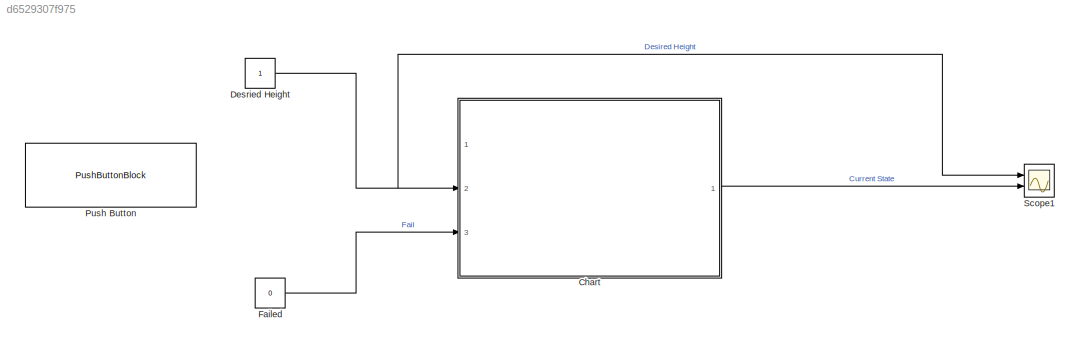
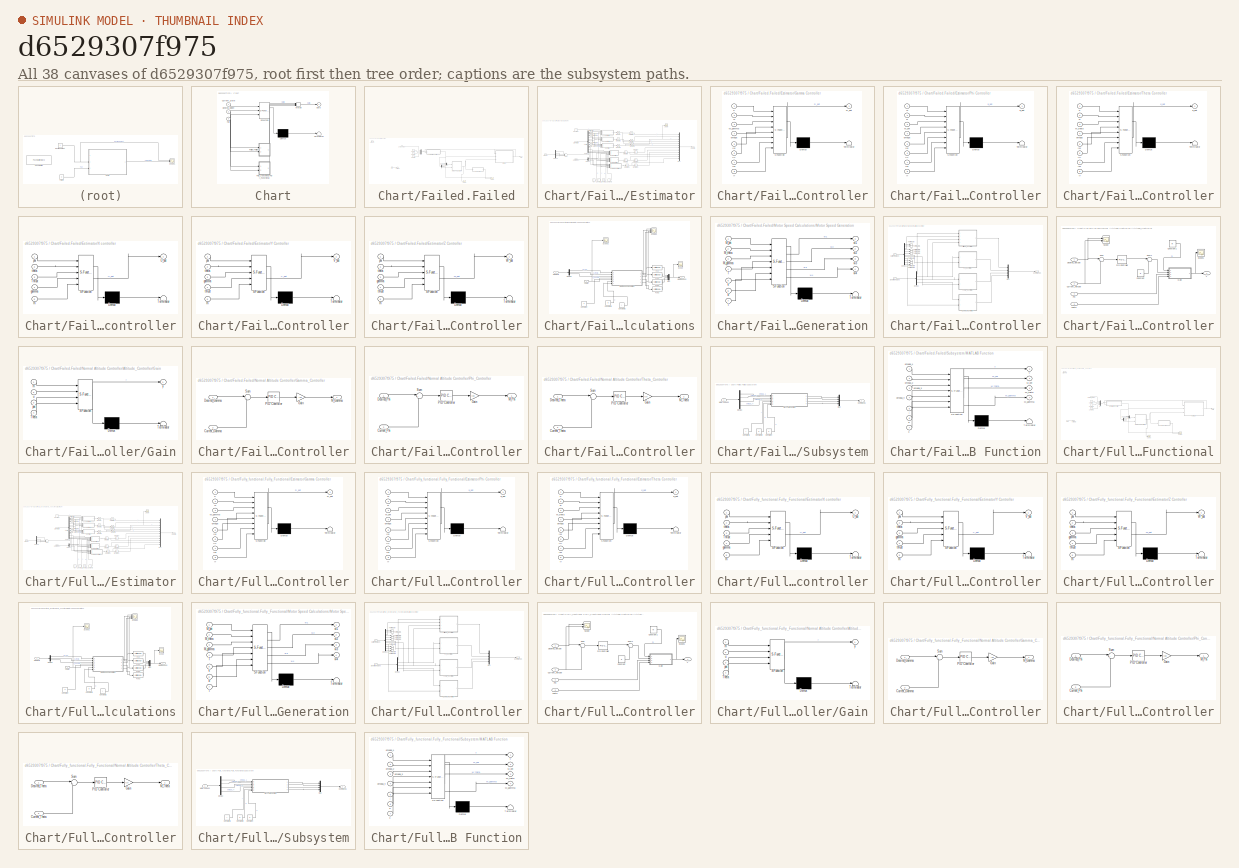
[diagram: thumbnail index - all 38 canvases of the model, root first then tree order]
MODEL slx_d6529307f975
KIND model
CONFIG AbsTol = auto
CONFIG EnableMultiTasking = off
CONFIG FixedStep = auto
CONFIG MaxStep = auto
CONFIG MinStep = auto
CONFIG RelTol = 1e-3
CONFIG SampleTimeConstraint = Unconstrained
CONFIG Solver = VariableStepAuto
CONFIG SolverName = VariableStepAuto
CONFIG StartTime = 0.0
CONFIG StopTime = inf
BLOCK [SubSystem] Chart
  ErrorFcn = Stateflow.Translate.translate
  PermitHierarchicalResolution = ExplicitOnly
  Ports = [3, 1]
  RequestExecContextInheritance = off
  SFBlockType = Chart
  TreatAsAtomicUnit = on
BLOCK [Demux] Chart/ Demux 
  Outputs = 1
  Ports = [1, 1]
BLOCK [Merge] Chart/ Merge 
  Inputs = 3
  Ports = [3, 1]
BLOCK [S-Function] Chart/ SFunction 
  EnableBusSupport = on
  FunctionName = sf_sfun
  PortCounts = [3 2]
  Ports = [3, 2]
  SFcnIsStateOwnerBlock = off
  SFunctionDeploymentMode = off
  Tag = Stateflow S-Function 1
BLOCK [Terminator] Chart/ Terminator 
BLOCK [Inport] Chart/Current_State
BLOCK [Inport] Chart/Desired_Height
  Port = 2
BLOCK [Inport] Chart/Fail
  Port = 3
BLOCK [SubSystem] Chart/Failed.Failed
  Ports = [2, 1, 0, 0, 0, 0, 0, 1]
  PreDeleteFcn = Stateflow.SLINSF.SimulinkMan.removePreDeleteFcn
  RequestExecContextInheritance = off
  UndoDeleteFcn = Stateflow.SLINSF.SimulinkMan.restorePreDeleteFcn
BLOCK [ActionPort] Chart/Failed.Failed/Action Port
  CopyFcn = Stateflow.SLINSF.SimulinkMan.removeBlockPreDeleteFcn
  PreDeleteFcn = Stateflow.SLINSF.SimulinkMan.unsafePredeleteFcn
BLOCK [Constant] Chart/Failed.Failed/Constant
  Value = 0
BLOCK [Constant] Chart/Failed.Failed/Constant1
  Value = 0
BLOCK [Constant] Chart/Failed.Failed/Constant2
  Value = 0
BLOCK [Demux] Chart/Failed.Failed/Demux
  Ports = [1, 4]
BLOCK [Inport] Chart/Failed.Failed/Desired_Height
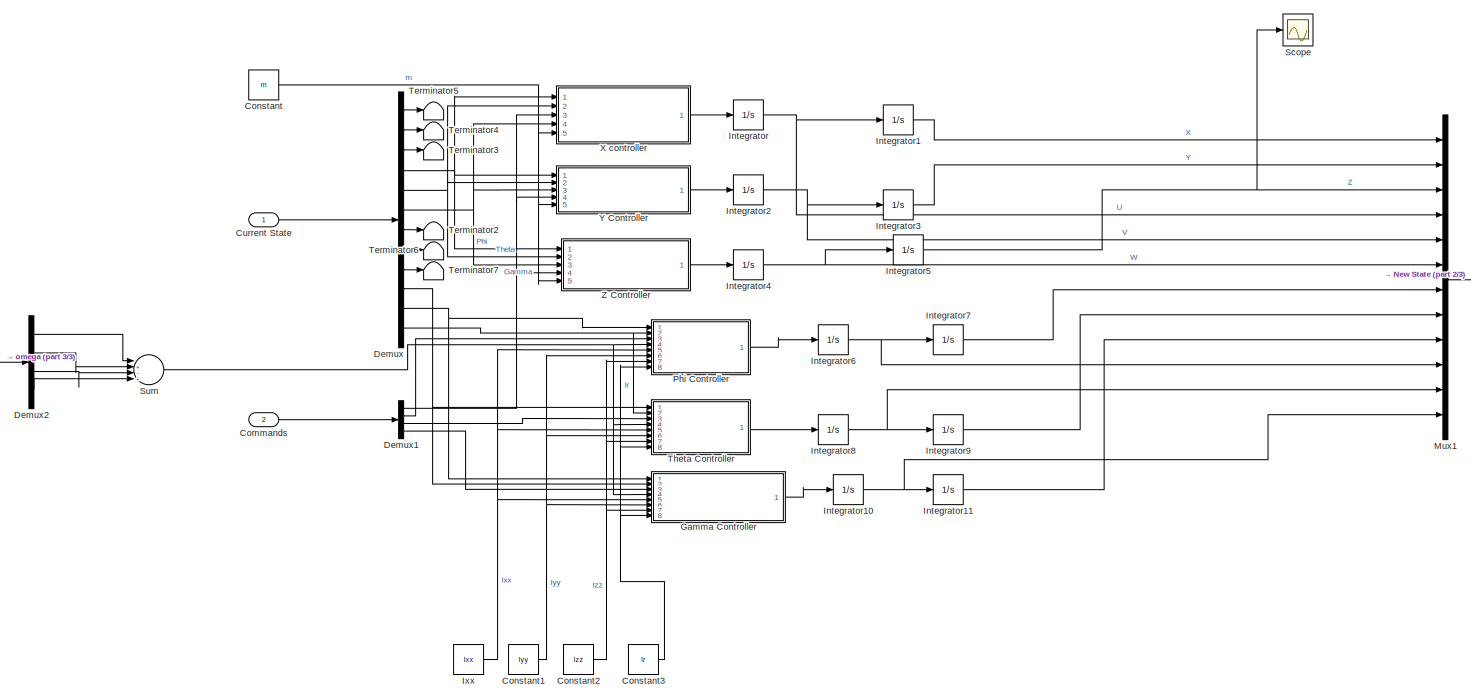
[diagram: Chart/Failed.Failed/Estimator - part 1/3, most of the canvas]
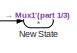
[diagram: Chart/Failed.Failed/Estimator - part 2/3, middle right region]
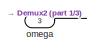
[diagram: Chart/Failed.Failed/Estimator - part 3/3, middle left region]
BLOCK [SubSystem] Chart/Failed.Failed/Estimator
  Ports = [3, 1]
  RequestExecContextInheritance = off
BLOCK [Inport] Chart/Failed.Failed/Estimator/Commands
  Port = 2
BLOCK [Constant] Chart/Failed.Failed/Estimator/Constant
  Value = m
BLOCK [Constant] Chart/Failed.Failed/Estimator/Constant1
  Value = Iyy
BLOCK [Constant] Chart/Failed.Failed/Estimator/Constant2
  Value = Izz
BLOCK [Constant] Chart/Failed.Failed/Estimator/Constant3
  Value = Ir
BLOCK [Inport] Chart/Failed.Failed/Estimator/Current State
BLOCK [Demux] Chart/Failed.Failed/Estimator/Demux
  Outputs = 12
  Ports = [1, 12]
BLOCK [Demux] Chart/Failed.Failed/Estimator/Demux1
  Ports = [1, 4]
BLOCK [Demux] Chart/Failed.Failed/Estimator/Demux2
  Ports = [1, 4]
BLOCK [SubSystem] Chart/Failed.Failed/Estimator/Gamma Controller
  ErrorFcn = Stateflow.Translate.translate
  PermitHierarchicalResolution = ExplicitOnly
  Ports = [8, 1]
  RequestExecContextInheritance = off
  SFBlockType = MATLAB Function
  TreatAsAtomicUnit = on
BLOCK [Demux] Chart/Failed.Failed/Estimator/Gamma Controller/ Demux 
  Outputs = 1
  Ports = [1, 1]
BLOCK [S-Function] Chart/Failed.Failed/Estimator/Gamma Controller/ SFunction 
  EnableBusSupport = on
  FunctionName = sf_sfun
  PortCounts = [8 2]
  Ports = [8, 2]
  SFcnIsStateOwnerBlock = off
  SFunctionDeploymentMode = off
  Tag = Stateflow S-Function 3
BLOCK [Terminator] Chart/Failed.Failed/Estimator/Gamma Controller/ Terminator 
BLOCK [Inport] Chart/Failed.Failed/Estimator/Gamma Controller/Ir
  Port = 8
BLOCK [Inport] Chart/Failed.Failed/Estimator/Gamma Controller/Ixx
  Port = 5
BLOCK [Inport] Chart/Failed.Failed/Estimator/Gamma Controller/Iyy
  Port = 6
BLOCK [Inport] Chart/Failed.Failed/Estimator/Gamma Controller/Izz
  Port = 7
BLOCK [Inport] Chart/Failed.Failed/Estimator/Gamma Controller/M_gamma
  Port = 3
BLOCK [Inport] Chart/Failed.Failed/Estimator/Gamma Controller/P
BLOCK [Inport] Chart/Failed.Failed/Estimator/Gamma Controller/Q
  Port = 2
BLOCK [Outport] Chart/Failed.Failed/Estimator/Gamma Controller/R_dot
BLOCK [Inport] Chart/Failed.Failed/Estimator/Gamma Controller/omega
  Port = 4
BLOCK [Integrator] Chart/Failed.Failed/Estimator/Integrator
  Ports = [1, 1]
BLOCK [Integrator] Chart/Failed.Failed/Estimator/Integrator1
  Ports = [1, 1]
BLOCK [Integrator] Chart/Failed.Failed/Estimator/Integrator10
  Ports = [1, 1]
BLOCK [Integrator] Chart/Failed.Failed/Estimator/Integrator11
  Ports = [1, 1]
BLOCK [Integrator] Chart/Failed.Failed/Estimator/Integrator2
  Ports = [1, 1]
BLOCK [Integrator] Chart/Failed.Failed/Estimator/Integrator3
  Ports = [1, 1]
BLOCK [Integrator] Chart/Failed.Failed/Estimator/Integrator4
  Ports = [1, 1]
BLOCK [Integrator] Chart/Failed.Failed/Estimator/Integrator5
  Ports = [1, 1]
BLOCK [Integrator] Chart/Failed.Failed/Estimator/Integrator6
  Ports = [1, 1]
BLOCK [Integrator] Chart/Failed.Failed/Estimator/Integrator7
  Ports = [1, 1]
BLOCK [Integrator] Chart/Failed.Failed/Estimator/Integrator8
  Ports = [1, 1]
BLOCK [Integrator] Chart/Failed.Failed/Estimator/Integrator9
  Ports = [1, 1]
BLOCK [Constant] Chart/Failed.Failed/Estimator/Ixx
  Value = Ixx
BLOCK [Mux] Chart/Failed.Failed/Estimator/Mux1
  DisplayOption = bar
  Inputs = 12
  Ports = [12, 1]
BLOCK [Outport] Chart/Failed.Failed/Estimator/New State
BLOCK [SubSystem] Chart/Failed.Failed/Estimator/Phi Controller
  ErrorFcn = Stateflow.Translate.translate
  PermitHierarchicalResolution = ExplicitOnly
  Ports = [8, 1]
  RequestExecContextInheritance = off
  SFBlockType = MATLAB Function
  TreatAsAtomicUnit = on
BLOCK [Demux] Chart/Failed.Failed/Estimator/Phi Controller/ Demux 
  Outputs = 1
  Ports = [1, 1]
BLOCK [S-Function] Chart/Failed.Failed/Estimator/Phi Controller/ SFunction 
  EnableBusSupport = on
  FunctionName = sf_sfun
  PortCounts = [8 2]
  Ports = [8, 2]
  SFcnIsStateOwnerBlock = off
  SFunctionDeploymentMode = off
  Tag = Stateflow S-Function 12
BLOCK [Terminator] Chart/Failed.Failed/Estimator/Phi Controller/ Terminator 
BLOCK [Inport] Chart/Failed.Failed/Estimator/Phi Controller/Ir
  Port = 8
BLOCK [Inport] Chart/Failed.Failed/Estimator/Phi Controller/Ixx
  Port = 5
BLOCK [Inport] Chart/Failed.Failed/Estimator/Phi Controller/Iyy
  Port = 6
BLOCK [Inport] Chart/Failed.Failed/Estimator/Phi Controller/Izz
  Port = 7
BLOCK [Inport] Chart/Failed.Failed/Estimator/Phi Controller/M_phi
  Port = 3
BLOCK [Inport] Chart/Failed.Failed/Estimator/Phi Controller/Q
BLOCK [Inport] Chart/Failed.Failed/Estimator/Phi Controller/R
  Port = 2
BLOCK [Inport] Chart/Failed.Failed/Estimator/Phi Controller/omega
  Port = 4
BLOCK [Outport] Chart/Failed.Failed/Estimator/Phi Controller/p_dot
BLOCK [Scope] Chart/Failed.Failed/Estimator/Scope
  Floating = off
  NumInputPorts = 1
  Ports = [1]
  ScopeSpecificationString = Simulink.scopes.TimeScopeBlockCfg('CurrentConfiguration', extmgr.ConfigurationSet(extmgr.Configuration('Core','General UI',true),extmgr.Configuration('Core','Source UI',true),extmgr.Configuration('Sources','WiredSimulink',true,'DataLoggingVariableName','ScopeData4'),extmgr.Configuration('Visuals','Time Domain',true,'SerializedDisplays',{struct('MinYLimReal','-100.13912','MaxYLimReal','88.7363','YL...<+1399ch>
BLOCK [Sum] Chart/Failed.Failed/Estimator/Sum
  Inputs = |+-+-
  Ports = [4, 1]
BLOCK [Terminator] Chart/Failed.Failed/Estimator/Terminator2
BLOCK [Terminator] Chart/Failed.Failed/Estimator/Terminator3
BLOCK [Terminator] Chart/Failed.Failed/Estimator/Terminator4
BLOCK [Terminator] Chart/Failed.Failed/Estimator/Terminator5
BLOCK [Terminator] Chart/Failed.Failed/Estimator/Terminator6
BLOCK [Terminator] Chart/Failed.Failed/Estimator/Terminator7
BLOCK [SubSystem] Chart/Failed.Failed/Estimator/Theta Controller
  ErrorFcn = Stateflow.Translate.translate
  PermitHierarchicalResolution = ExplicitOnly
  Ports = [8, 1]
  RequestExecContextInheritance = off
  SFBlockType = MATLAB Function
  TreatAsAtomicUnit = on
BLOCK [Demux] Chart/Failed.Failed/Estimator/Theta Controller/ Demux 
  Outputs = 1
  Ports = [1, 1]
BLOCK [S-Function] Chart/Failed.Failed/Estimator/Theta Controller/ SFunction 
  EnableBusSupport = on
  FunctionName = sf_sfun
  PortCounts = [8 2]
  Ports = [8, 2]
  SFcnIsStateOwnerBlock = off
  SFunctionDeploymentMode = off
  Tag = Stateflow S-Function 13
BLOCK [Terminator] Chart/Failed.Failed/Estimator/Theta Controller/ Terminator 
BLOCK [Inport] Chart/Failed.Failed/Estimator/Theta Controller/Ir
  Port = 8
BLOCK [Inport] Chart/Failed.Failed/Estimator/Theta Controller/Ixx
  Port = 5
BLOCK [Inport] Chart/Failed.Failed/Estimator/Theta Controller/Iyy
  Port = 6
BLOCK [Inport] Chart/Failed.Failed/Estimator/Theta Controller/Izz
  Port = 7
BLOCK [Inport] Chart/Failed.Failed/Estimator/Theta Controller/M_theta
  Port = 3
BLOCK [Inport] Chart/Failed.Failed/Estimator/Theta Controller/P
BLOCK [Inport] Chart/Failed.Failed/Estimator/Theta Controller/R
  Port = 2
BLOCK [Inport] Chart/Failed.Failed/Estimator/Theta Controller/omega
  Port = 4
BLOCK [Outport] Chart/Failed.Failed/Estimator/Theta Controller/q_dot
BLOCK [SubSystem] Chart/Failed.Failed/Estimator/X controller
  ErrorFcn = Stateflow.Translate.translate
  PermitHierarchicalResolution = ExplicitOnly
  Ports = [5, 1]
  RequestExecContextInheritance = off
  SFBlockType = MATLAB Function
  TreatAsAtomicUnit = on
BLOCK [Demux] Chart/Failed.Failed/Estimator/X controller/ Demux 
  Outputs = 1
  Ports = [1, 1]
BLOCK [S-Function] Chart/Failed.Failed/Estimator/X controller/ SFunction 
  EnableBusSupport = on
  FunctionName = sf_sfun
  PortCounts = [5 2]
  Ports = [5, 2]
  SFcnIsStateOwnerBlock = off
  SFunctionDeploymentMode = off
  Tag = Stateflow S-Function 14
BLOCK [Terminator] Chart/Failed.Failed/Estimator/X controller/ Terminator 
BLOCK [Inport] Chart/Failed.Failed/Estimator/X controller/Thrust
  Port = 3
BLOCK [Outport] Chart/Failed.Failed/Estimator/X controller/U_dot
BLOCK [Inport] Chart/Failed.Failed/Estimator/X controller/gamma
  Port = 4
BLOCK [Inport] Chart/Failed.Failed/Estimator/X controller/m
  Port = 5
BLOCK [Inport] Chart/Failed.Failed/Estimator/X controller/phi
BLOCK [Inport] Chart/Failed.Failed/Estimator/X controller/theta
  Port = 2
BLOCK [SubSystem] Chart/Failed.Failed/Estimator/Y Controller
  ErrorFcn = Stateflow.Translate.translate
  PermitHierarchicalResolution = ExplicitOnly
  Ports = [5, 1]
  RequestExecContextInheritance = off
  SFBlockType = MATLAB Function
  TreatAsAtomicUnit = on
BLOCK [Demux] Chart/Failed.Failed/Estimator/Y Controller/ Demux 
  Outputs = 1
  Ports = [1, 1]
BLOCK [S-Function] Chart/Failed.Failed/Estimator/Y Controller/ SFunction 
  EnableBusSupport = on
  FunctionName = sf_sfun
  PortCounts = [5 2]
  Ports = [5, 2]
  SFcnIsStateOwnerBlock = off
  SFunctionDeploymentMode = off
  Tag = Stateflow S-Function 15
BLOCK [Terminator] Chart/Failed.Failed/Estimator/Y Controller/ Terminator 
BLOCK [Outport] Chart/Failed.Failed/Estimator/Y Controller/V_dot
BLOCK [Inport] Chart/Failed.Failed/Estimator/Y Controller/gamma
  Port = 3
BLOCK [Inport] Chart/Failed.Failed/Estimator/Y Controller/m
  Port = 5
BLOCK [Inport] Chart/Failed.Failed/Estimator/Y Controller/phi
BLOCK [Inport] Chart/Failed.Failed/Estimator/Y Controller/theta
  Port = 2
BLOCK [Inport] Chart/Failed.Failed/Estimator/Y Controller/thrust
  Port = 4
BLOCK [SubSystem] Chart/Failed.Failed/Estimator/Z Controller
  ErrorFcn = Stateflow.Translate.translate
  PermitHierarchicalResolution = ExplicitOnly
  Ports = [5, 1]
  RequestExecContextInheritance = off
  SFBlockType = MATLAB Function
  TreatAsAtomicUnit = on
BLOCK [Demux] Chart/Failed.Failed/Estimator/Z Controller/ Demux 
  Outputs = 1
  Ports = [1, 1]
BLOCK [S-Function] Chart/Failed.Failed/Estimator/Z Controller/ SFunction 
  EnableBusSupport = on
  FunctionName = sf_sfun
  PortCounts = [5 2]
  Ports = [5, 2]
  SFcnIsStateOwnerBlock = off
  SFunctionDeploymentMode = off
  Tag = Stateflow S-Function 16
BLOCK [Terminator] Chart/Failed.Failed/Estimator/Z Controller/ Terminator 
BLOCK [Outport] Chart/Failed.Failed/Estimator/Z Controller/W_dot
BLOCK [Inport] Chart/Failed.Failed/Estimator/Z Controller/gamma
  Port = 3
BLOCK [Inport] Chart/Failed.Failed/Estimator/Z Controller/m
  Port = 5
BLOCK [Inport] Chart/Failed.Failed/Estimator/Z Controller/phi
BLOCK [Inport] Chart/Failed.Failed/Estimator/Z Controller/theta
  Port = 2
BLOCK [Inport] Chart/Failed.Failed/Estimator/Z Controller/thrust
  Port = 4
BLOCK [Inport] Chart/Failed.Failed/Estimator/omega
  Port = 3
BLOCK [Inport] Chart/Failed.Failed/Fail
  Port = 2
BLOCK [SubSystem] Chart/Failed.Failed/Motor Speed Calculations
  Ports = [2, 1]
  RequestExecContextInheritance = off
BLOCK [Constant] Chart/Failed.Failed/Motor Speed Calculations/Constant
  Value = k
BLOCK [Constant] Chart/Failed.Failed/Motor Speed Calculations/Constant1
  Value = b
BLOCK [Constant] Chart/Failed.Failed/Motor Speed Calculations/Constant2
  Value = l
BLOCK [Demux] Chart/Failed.Failed/Motor Speed Calculations/Demux
  Outputs = 3
  Ports = [1, 3]
BLOCK [Fcn] Chart/Failed.Failed/Motor Speed Calculations/Fcn
  Expr = sqrt(abs(u))
BLOCK [Fcn] Chart/Failed.Failed/Motor Speed Calculations/Fcn1
  Expr = sqrt(abs(u))
BLOCK [Fcn] Chart/Failed.Failed/Motor Speed Calculations/Fcn2
  Expr = sqrt(abs(u))
BLOCK [Fcn] Chart/Failed.Failed/Motor Speed Calculations/Fcn3
  Expr = sqrt(abs(u))
BLOCK [Inport] Chart/Failed.Failed/Motor Speed Calculations/Moments
BLOCK [SubSystem] Chart/Failed.Failed/Motor Speed Calculations/Motor Speed Generation
  ErrorFcn = Stateflow.Translate.translate
  PermitHierarchicalResolution = ExplicitOnly
  Ports = [7, 4]
  RequestExecContextInheritance = off
  SFBlockType = MATLAB Function
  TreatAsAtomicUnit = on
BLOCK [Demux] Chart/Failed.Failed/Motor Speed Calculations/Motor Speed Generation/ Demux 
  Outputs = 1
  Ports = [1, 1]
BLOCK [S-Function] Chart/Failed.Failed/Motor Speed Calculations/Motor Speed Generation/ SFunction 
  EnableBusSupport = on
  FunctionName = sf_sfun
  PortCounts = [7 5]
  Ports = [7, 5]
  SFcnIsStateOwnerBlock = off
  SFunctionDeploymentMode = off
  Tag = Stateflow S-Function 17
BLOCK [Terminator] Chart/Failed.Failed/Motor Speed Calculations/Motor Speed Generation/ Terminator 
BLOCK [Inport] Chart/Failed.Failed/Motor Speed Calculations/Motor Speed Generation/M_gamma
  Port = 3
BLOCK [Inport] Chart/Failed.Failed/Motor Speed Calculations/Motor Speed Generation/M_phi
BLOCK [Inport] Chart/Failed.Failed/Motor Speed Calculations/Motor Speed Generation/M_theta
  Port = 2
BLOCK [Inport] Chart/Failed.Failed/Motor Speed Calculations/Motor Speed Generation/T
  Port = 4
BLOCK [Inport] Chart/Failed.Failed/Motor Speed Calculations/Motor Speed Generation/b
  Port = 6
BLOCK [Inport] Chart/Failed.Failed/Motor Speed Calculations/Motor Speed Generation/k
  Port = 5
BLOCK [Inport] Chart/Failed.Failed/Motor Speed Calculations/Motor Speed Generation/l
  Port = 7
BLOCK [Outport] Chart/Failed.Failed/Motor Speed Calculations/Motor Speed Generation/w1
BLOCK [Outport] Chart/Failed.Failed/Motor Speed Calculations/Motor Speed Generation/w2
  Port = 2
BLOCK [Outport] Chart/Failed.Failed/Motor Speed Calculations/Motor Speed Generation/w3
  Port = 3
BLOCK [Outport] Chart/Failed.Failed/Motor Speed Calculations/Motor Speed Generation/w4
  Port = 4
BLOCK [Outport] Chart/Failed.Failed/Motor Speed Calculations/Motor Speeds
BLOCK [Mux] Chart/Failed.Failed/Motor Speed Calculations/Mux
  DisplayOption = bar
  Ports = [4, 1]
BLOCK [Scope] Chart/Failed.Failed/Motor Speed Calculations/Scope
  Floating = off
  NumInputPorts = 1
  Ports = [1]
  ScopeSpecificationString = Simulink.scopes.TimeScopeBlockCfg('CurrentConfiguration', extmgr.ConfigurationSet(extmgr.Configuration('Core','General UI',true),extmgr.Configuration('Core','Source UI',true),extmgr.Configuration('Sources','WiredSimulink',true,'DataLoggingVariableName','ScopeData5'),extmgr.Configuration('Visuals','Time Domain',true,'SerializedDisplays',{struct('MinYLimReal','-173.06483','MaxYLimReal','2272.1986','...<+1515ch>
BLOCK [Scope] Chart/Failed.Failed/Motor Speed Calculations/Scope1
  Floating = off
  NumInputPorts = 4
  Ports = [4]
  ScopeSpecificationString = Simulink.scopes.TimeScopeBlockCfg('CurrentConfiguration', extmgr.ConfigurationSet(extmgr.Configuration('Core','General UI',true),extmgr.Configuration('Core','Source UI',true),extmgr.Configuration('Sources','WiredSimulink',true,'DataLoggingVariableName','ScopeData6'),extmgr.Configuration('Visuals','Time Domain',true,'SerializedDisplays',{struct('MinYLimReal','-26176208.90607','MaxYLimReal','1263320...<+1669ch>
BLOCK [Scope] Chart/Failed.Failed/Motor Speed Calculations/Scope2
  Floating = off
  NumInputPorts = 1
  Ports = [1]
  ScopeSpecificationString = Simulink.scopes.TimeScopeBlockCfg('CurrentConfiguration', extmgr.ConfigurationSet(extmgr.Configuration('Core','General UI',true),extmgr.Configuration('Core','Source UI',true),extmgr.Configuration('Sources','WiredSimulink',true,'DataLoggingVariableName','ScopeData7'),extmgr.Configuration('Visuals','Time Domain',true,'SerializedDisplays',{struct('MinYLimReal','-58.40215','MaxYLimReal','35.53397','YL...<+1400ch>
BLOCK [Inport] Chart/Failed.Failed/Motor Speed Calculations/Thurst
  Port = 2
BLOCK [Mux] Chart/Failed.Failed/Mux
  DisplayOption = bar
  Ports = [4, 1]
BLOCK [Mux] Chart/Failed.Failed/Mux1
  DisplayOption = bar
  Inputs = 3
  Ports = [3, 1]
BLOCK [SubSystem] Chart/Failed.Failed/Normal Altitude Controller
  Ports = [2, 1]
  RequestExecContextInheritance = off
BLOCK [SubSystem] Chart/Failed.Failed/Normal Altitude Controller/Altitude_Controller
  Ports = [4, 1]
  RequestExecContextInheritance = off
BLOCK [Constant] Chart/Failed.Failed/Normal Altitude Controller/Altitude_Controller/Constant
  Value = g
BLOCK [Constant] Chart/Failed.Failed/Normal Altitude Controller/Altitude_Controller/Constant1
  Value = m
BLOCK [Inport] Chart/Failed.Failed/Normal Altitude Controller/Altitude_Controller/Current_Altitude
  Port = 2
BLOCK [Inport] Chart/Failed.Failed/Normal Altitude Controller/Altitude_Controller/Desired_Altitude
BLOCK [SubSystem] Chart/Failed.Failed/Normal Altitude Controller/Altitude_Controller/Gain
  ErrorFcn = Stateflow.Translate.translate
  PermitHierarchicalResolution = ExplicitOnly
  Ports = [4, 1]
  RequestExecContextInheritance = off
  SFBlockType = MATLAB Function
  TreatAsAtomicUnit = on
BLOCK [Demux] Chart/Failed.Failed/Normal Altitude Controller/Altitude_Controller/Gain/ Demux 
  Outputs = 1
  Ports = [1, 1]
BLOCK [S-Function] Chart/Failed.Failed/Normal Altitude Controller/Altitude_Controller/Gain/ SFunction 
  EnableBusSupport = on
  FunctionName = sf_sfun
  PortCounts = [4 2]
  Ports = [4, 2]
  SFcnIsStateOwnerBlock = off
  SFunctionDeploymentMode = off
  Tag = Stateflow S-Function 18
BLOCK [Terminator] Chart/Failed.Failed/Normal Altitude Controller/Altitude_Controller/Gain/ Terminator 
BLOCK [Inport] Chart/Failed.Failed/Normal Altitude Controller/Altitude_Controller/Gain/Theta
  Port = 4
BLOCK [Inport] Chart/Failed.Failed/Normal Altitude Controller/Altitude_Controller/Gain/m
BLOCK [Inport] Chart/Failed.Failed/Normal Altitude Controller/Altitude_Controller/Gain/phi
  Port = 3
BLOCK [Inport] Chart/Failed.Failed/Normal Altitude Controller/Altitude_Controller/Gain/u
  Port = 2
BLOCK [Outport] Chart/Failed.Failed/Normal Altitude Controller/Altitude_Controller/Gain/y
BLOCK [Reference] Chart/Failed.Failed/Normal Altitude Controller/Altitude_Controller/PID Controller  REF=simulink/Continuous/PID Controller
  Ports = [1, 1]
  SourceBlock = simulink/Continuous/PID Controller
  SourceProductBaseCode = SL
  SourceType = PID 1dof
BLOCK [Inport] Chart/Failed.Failed/Normal Altitude Controller/Altitude_Controller/Phi
  Port = 4
BLOCK [Scope] Chart/Failed.Failed/Normal Altitude Controller/Altitude_Controller/Scope
  Floating = off
  NumInputPorts = 2
  Ports = [2]
  ScopeSpecificationString = Simulink.scopes.TimeScopeBlockCfg('CurrentConfiguration', extmgr.ConfigurationSet(extmgr.Configuration('Core','General UI',true),extmgr.Configuration('Core','Source UI',true),extmgr.Configuration('Sources','WiredSimulink',true,'DataLoggingVariableName','ScopeData2'),extmgr.Configuration('Visuals','Time Domain',true,'SerializedDisplays',{struct('MinYLimReal','-0.71295','MaxYLimReal','6.41652','YLab...<+1537ch>
BLOCK [Scope] Chart/Failed.Failed/Normal Altitude Controller/Altitude_Controller/Scope1
  Floating = off
  NumInputPorts = 1
  Ports = [1]
  ScopeSpecificationString = Simulink.scopes.TimeScopeBlockCfg('CurrentConfiguration', extmgr.ConfigurationSet(extmgr.Configuration('Core','General UI',true),extmgr.Configuration('Core','Source UI',true),extmgr.Configuration('Sources','WiredSimulink',true,'DataLoggingVariableName','ScopeData3'),extmgr.Configuration('Visuals','Time Domain',true,'SerializedDisplays',{struct('MinYLimReal','-58.40215','MaxYLimReal','35.53397','YL...<+1369ch>
BLOCK [Sum] Chart/Failed.Failed/Normal Altitude Controller/Altitude_Controller/Sum
  Inputs = |+-
  Ports = [2, 1]
BLOCK [Sum] Chart/Failed.Failed/Normal Altitude Controller/Altitude_Controller/Sum1
  Inputs = |++
  Ports = [2, 1]
BLOCK [Outport] Chart/Failed.Failed/Normal Altitude Controller/Altitude_Controller/T
BLOCK [Inport] Chart/Failed.Failed/Normal Altitude Controller/Altitude_Controller/Theta
  Port = 3
BLOCK [Outport] Chart/Failed.Failed/Normal Altitude Controller/Commands
BLOCK [Inport] Chart/Failed.Failed/Normal Altitude Controller/Current Values
  Port = 2
BLOCK [Demux] Chart/Failed.Failed/Normal Altitude Controller/Demux
  Ports = [1, 4]
BLOCK [Demux] Chart/Failed.Failed/Normal Altitude Controller/Demux1
  Outputs = 12
  Ports = [1, 12]
BLOCK [Inport] Chart/Failed.Failed/Normal Altitude Controller/Desired Values 
BLOCK [SubSystem] Chart/Failed.Failed/Normal Altitude Controller/Gamma_Controller
  Ports = [2, 1]
  RequestExecContextInheritance = off
BLOCK [Inport] Chart/Failed.Failed/Normal Altitude Controller/Gamma_Controller/Current_Gamma
  Port = 2
BLOCK [Inport] Chart/Failed.Failed/Normal Altitude Controller/Gamma_Controller/Desired_Gamma
BLOCK [Gain] Chart/Failed.Failed/Normal Altitude Controller/Gamma_Controller/Gain
  Gain = Izz
BLOCK [Outport] Chart/Failed.Failed/Normal Altitude Controller/Gamma_Controller/M_Gamma
BLOCK [Reference] Chart/Failed.Failed/Normal Altitude Controller/Gamma_Controller/PID Controller  REF=simulink/Continuous/PID Controller
  Ports = [1, 1]
  SourceBlock = simulink/Continuous/PID Controller
  SourceProductBaseCode = SL
  SourceType = PID 1dof
BLOCK [Sum] Chart/Failed.Failed/Normal Altitude Controller/Gamma_Controller/Sum
  Inputs = |+-
  Ports = [2, 1]
BLOCK [Mux] Chart/Failed.Failed/Normal Altitude Controller/Mux
  DisplayOption = bar
  Ports = [4, 1]
BLOCK [SubSystem] Chart/Failed.Failed/Normal Altitude Controller/Phi_Controller
  Ports = [2, 1]
  RequestExecContextInheritance = off
BLOCK [Inport] Chart/Failed.Failed/Normal Altitude Controller/Phi_Controller/Current_Phi
  Port = 2
BLOCK [Inport] Chart/Failed.Failed/Normal Altitude Controller/Phi_Controller/Desired_Phi
BLOCK [Gain] Chart/Failed.Failed/Normal Altitude Controller/Phi_Controller/Gain
  Gain = Ixx
BLOCK [Outport] Chart/Failed.Failed/Normal Altitude Controller/Phi_Controller/M_Phi
BLOCK [Reference] Chart/Failed.Failed/Normal Altitude Controller/Phi_Controller/PID Controller  REF=simulink/Continuous/PID Controller
  Ports = [1, 1]
  SourceBlock = simulink/Continuous/PID Controller
  SourceProductBaseCode = SL
  SourceType = PID 1dof
BLOCK [Sum] Chart/Failed.Failed/Normal Altitude Controller/Phi_Controller/Sum
  Inputs = |+-
  Ports = [2, 1]
BLOCK [Terminator] Chart/Failed.Failed/Normal Altitude Controller/Terminator
BLOCK [Terminator] Chart/Failed.Failed/Normal Altitude Controller/Terminator1
BLOCK [Terminator] Chart/Failed.Failed/Normal Altitude Controller/Terminator2
BLOCK [Terminator] Chart/Failed.Failed/Normal Altitude Controller/Terminator3
BLOCK [Terminator] Chart/Failed.Failed/Normal Altitude Controller/Terminator4
BLOCK [Terminator] Chart/Failed.Failed/Normal Altitude Controller/Terminator5
BLOCK [Terminator] Chart/Failed.Failed/Normal Altitude Controller/Terminator6
BLOCK [Terminator] Chart/Failed.Failed/Normal Altitude Controller/Terminator7
BLOCK [SubSystem] Chart/Failed.Failed/Normal Altitude Controller/Theta_Controller
  Ports = [2, 1]
  RequestExecContextInheritance = off
BLOCK [Inport] Chart/Failed.Failed/Normal Altitude Controller/Theta_Controller/Current_Theta
  Port = 2
BLOCK [Inport] Chart/Failed.Failed/Normal Altitude Controller/Theta_Controller/Desired_Theta
BLOCK [Gain] Chart/Failed.Failed/Normal Altitude Controller/Theta_Controller/Gain
  Gain = Iyy
BLOCK [Outport] Chart/Failed.Failed/Normal Altitude Controller/Theta_Controller/M_Theta
BLOCK [Reference] Chart/Failed.Failed/Normal Altitude Controller/Theta_Controller/PID Controller  REF=simulink/Continuous/PID Controller
  Ports = [1, 1]
  SourceBlock = simulink/Continuous/PID Controller
  SourceProductBaseCode = SL
  SourceType = PID 1dof
BLOCK [Sum] Chart/Failed.Failed/Normal Altitude Controller/Theta_Controller/Sum
  Inputs = |+-
  Ports = [2, 1]
BLOCK [Scope] Chart/Failed.Failed/Scope1
  Floating = off
  NumInputPorts = 2
  Ports = [2]
  ScopeSpecificationString = Simulink.scopes.TimeScopeBlockCfg('CurrentConfiguration', extmgr.ConfigurationSet(extmgr.Configuration('Core','General UI',true),extmgr.Configuration('Core','Source UI',true),extmgr.Configuration('Sources','WiredSimulink',true,'DataLoggingVariableName','ScopeData1'),extmgr.Configuration('Visuals','Time Domain',true,'SerializedDisplays',{struct('MinYLimReal','-312.02041','MaxYLimReal','1505.87835',...<+1770ch>
BLOCK [Scope] Chart/Failed.Failed/Scope2
  Floating = off
  NumInputPorts = 1
  Ports = [1]
  ScopeSpecificationString = Simulink.scopes.TimeScopeBlockCfg('CurrentConfiguration', extmgr.ConfigurationSet(extmgr.Configuration('Core','General UI',true),extmgr.Configuration('Core','Source UI',true),extmgr.Configuration('Sources','WiredSimulink',true,'DataLoggingVariableName','ScopeData2'),extmgr.Configuration('Visuals','Time Domain',true,'SerializedDisplays',{struct('MinYLimReal','-173.06483','MaxYLimReal','2272.1986','...<+1655ch>
BLOCK [SubSystem] Chart/Failed.Failed/Subsystem
  Ports = [1, 1]
  RequestExecContextInheritance = off
BLOCK [Outport] Chart/Failed.Failed/Subsystem/Commands
BLOCK [Constant] Chart/Failed.Failed/Subsystem/Constant
  Value = k
BLOCK [Constant] Chart/Failed.Failed/Subsystem/Constant1
  Value = l
BLOCK [Constant] Chart/Failed.Failed/Subsystem/Constant2
  Value = b
BLOCK [Demux] Chart/Failed.Failed/Subsystem/Demux
  Ports = [1, 4]
BLOCK [SubSystem] Chart/Failed.Failed/Subsystem/MATLAB Function
  ErrorFcn = Stateflow.Translate.translate
  PermitHierarchicalResolution = ExplicitOnly
  Ports = [7, 4]
  RequestExecContextInheritance = off
  SFBlockType = MATLAB Function
  TreatAsAtomicUnit = on
BLOCK [Demux] Chart/Failed.Failed/Subsystem/MATLAB Function/ Demux 
  Outputs = 1
  Ports = [1, 1]
BLOCK [S-Function] Chart/Failed.Failed/Subsystem/MATLAB Function/ SFunction 
  EnableBusSupport = on
  FunctionName = sf_sfun
  PortCounts = [7 5]
  Ports = [7, 5]
  SFcnIsStateOwnerBlock = off
  SFunctionDeploymentMode = off
  Tag = Stateflow S-Function 19
BLOCK [Terminator] Chart/Failed.Failed/Subsystem/MATLAB Function/ Terminator 
BLOCK [Outport] Chart/Failed.Failed/Subsystem/MATLAB Function/M_gamma
  Port = 4
BLOCK [Outport] Chart/Failed.Failed/Subsystem/MATLAB Function/M_phi
  Port = 2
BLOCK [Outport] Chart/Failed.Failed/Subsystem/MATLAB Function/M_theta
  Port = 3
BLOCK [Outport] Chart/Failed.Failed/Subsystem/MATLAB Function/T
BLOCK [Inport] Chart/Failed.Failed/Subsystem/MATLAB Function/b
  Port = 6
BLOCK [Inport] Chart/Failed.Failed/Subsystem/MATLAB Function/k
  Port = 7
BLOCK [Inport] Chart/Failed.Failed/Subsystem/MATLAB Function/l
  Port = 5
BLOCK [Inport] Chart/Failed.Failed/Subsystem/MATLAB Function/omega_1
BLOCK [Inport] Chart/Failed.Failed/Subsystem/MATLAB Function/omega_2
  Port = 2
BLOCK [Inport] Chart/Failed.Failed/Subsystem/MATLAB Function/omega_3
  Port = 3
BLOCK [Inport] Chart/Failed.Failed/Subsystem/MATLAB Function/omega_4
  Port = 4
BLOCK [Inport] Chart/Failed.Failed/Subsystem/Motor Speeds
BLOCK [Mux] Chart/Failed.Failed/Subsystem/Mux
  DisplayOption = bar
  Ports = [4, 1]
BLOCK [Terminator] Chart/Failed.Failed/Terminator
BLOCK [Outport] Chart/Failed.Failed/data
BLOCK [SubSystem] Chart/Fully_functional.Fully_Functional
  Ports = [2, 1, 0, 0, 0, 0, 0, 1]
  PreDeleteFcn = Stateflow.SLINSF.SimulinkMan.removePreDeleteFcn
  RequestExecContextInheritance = off
  UndoDeleteFcn = Stateflow.SLINSF.SimulinkMan.restorePreDeleteFcn
BLOCK [ActionPort] Chart/Fully_functional.Fully_Functional/Action Port
  CopyFcn = Stateflow.SLINSF.SimulinkMan.removeBlockPreDeleteFcn
  PreDeleteFcn = Stateflow.SLINSF.SimulinkMan.unsafePredeleteFcn
BLOCK [Constant] Chart/Fully_functional.Fully_Functional/Constant
  Value = 0
BLOCK [Constant] Chart/Fully_functional.Fully_Functional/Constant1
  Value = 0
BLOCK [Constant] Chart/Fully_functional.Fully_Functional/Constant2
  Value = 0
BLOCK [Demux] Chart/Fully_functional.Fully_Functional/Demux
  Ports = [1, 4]
BLOCK [Inport] Chart/Fully_functional.Fully_Functional/Desired_Height
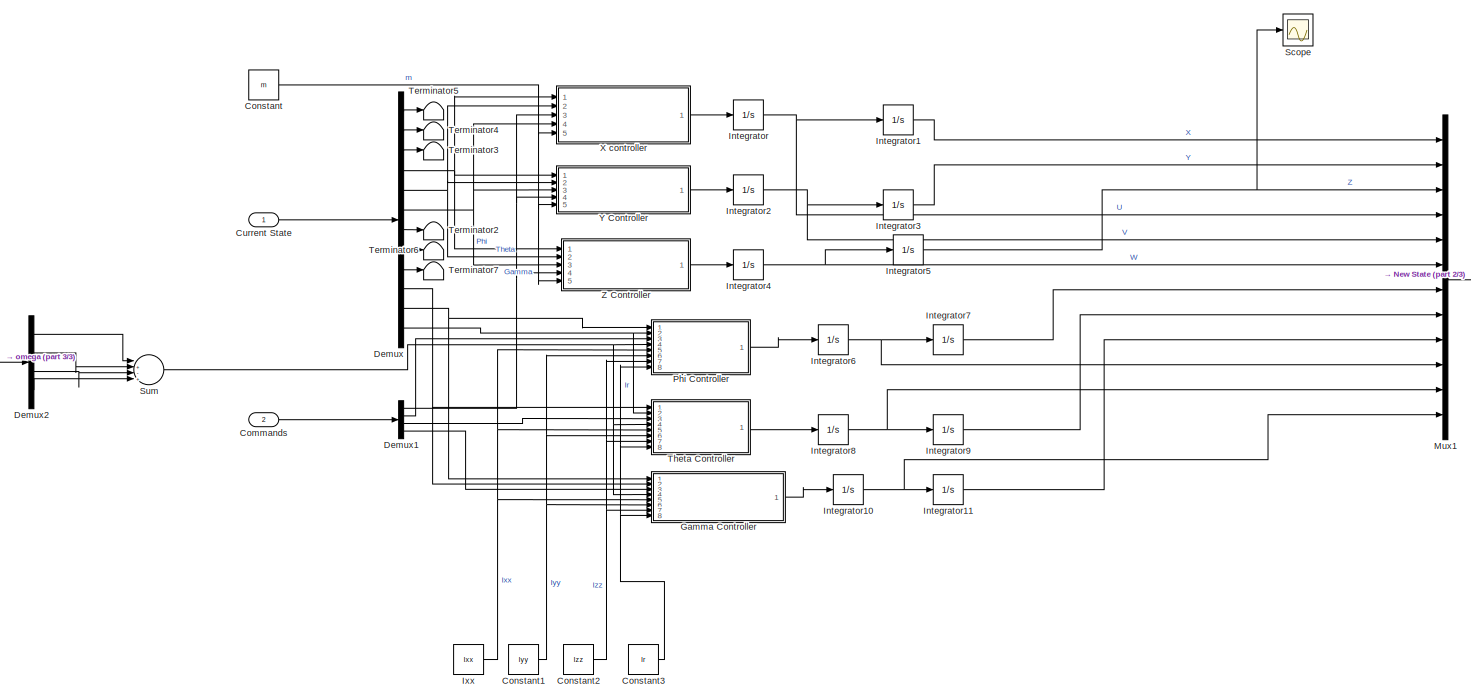
[diagram: Chart/Fully_functional.Fully_Functional/Estimator - part 1/3, most of the canvas]
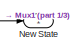
[diagram: Chart/Fully_functional.Fully_Functional/Estimator - part 2/3, middle right region]
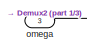
[diagram: Chart/Fully_functional.Fully_Functional/Estimator - part 3/3, middle left region]
BLOCK [SubSystem] Chart/Fully_functional.Fully_Functional/Estimator
  Ports = [3, 1]
  RequestExecContextInheritance = off
BLOCK [Inport] Chart/Fully_functional.Fully_Functional/Estimator/Commands
  Port = 2
BLOCK [Constant] Chart/Fully_functional.Fully_Functional/Estimator/Constant
  Value = m
BLOCK [Constant] Chart/Fully_functional.Fully_Functional/Estimator/Constant1
  Value = Iyy
BLOCK [Constant] Chart/Fully_functional.Fully_Functional/Estimator/Constant2
  Value = Izz
BLOCK [Constant] Chart/Fully_functional.Fully_Functional/Estimator/Constant3
  Value = Ir
BLOCK [Inport] Chart/Fully_functional.Fully_Functional/Estimator/Current State
BLOCK [Demux] Chart/Fully_functional.Fully_Functional/Estimator/Demux
  Outputs = 12
  Ports = [1, 12]
BLOCK [Demux] Chart/Fully_functional.Fully_Functional/Estimator/Demux1
  Ports = [1, 4]
BLOCK [Demux] Chart/Fully_functional.Fully_Functional/Estimator/Demux2
  Ports = [1, 4]
BLOCK [SubSystem] Chart/Fully_functional.Fully_Functional/Estimator/Gamma Controller
  ErrorFcn = Stateflow.Translate.translate
  PermitHierarchicalResolution = ExplicitOnly
  Ports = [8, 1]
  RequestExecContextInheritance = off
  SFBlockType = MATLAB Function
  TreatAsAtomicUnit = on
BLOCK [Demux] Chart/Fully_functional.Fully_Functional/Estimator/Gamma Controller/ Demux 
  Outputs = 1
  Ports = [1, 1]
BLOCK [S-Function] Chart/Fully_functional.Fully_Functional/Estimator/Gamma Controller/ SFunction 
  EnableBusSupport = on
  FunctionName = sf_sfun
  PortCounts = [8 2]
  Ports = [8, 2]
  SFcnIsStateOwnerBlock = off
  SFunctionDeploymentMode = off
  Tag = Stateflow S-Function 6
BLOCK [Terminator] Chart/Fully_functional.Fully_Functional/Estimator/Gamma Controller/ Terminator 
BLOCK [Inport] Chart/Fully_functional.Fully_Functional/Estimator/Gamma Controller/Ir
  Port = 8
BLOCK [Inport] Chart/Fully_functional.Fully_Functional/Estimator/Gamma Controller/Ixx
  Port = 5
BLOCK [Inport] Chart/Fully_functional.Fully_Functional/Estimator/Gamma Controller/Iyy
  Port = 6
BLOCK [Inport] Chart/Fully_functional.Fully_Functional/Estimator/Gamma Controller/Izz
  Port = 7
BLOCK [Inport] Chart/Fully_functional.Fully_Functional/Estimator/Gamma Controller/M_gamma
  Port = 3
BLOCK [Inport] Chart/Fully_functional.Fully_Functional/Estimator/Gamma Controller/P
BLOCK [Inport] Chart/Fully_functional.Fully_Functional/Estimator/Gamma Controller/Q
  Port = 2
BLOCK [Outport] Chart/Fully_functional.Fully_Functional/Estimator/Gamma Controller/R_dot
BLOCK [Inport] Chart/Fully_functional.Fully_Functional/Estimator/Gamma Controller/omega
  Port = 4
BLOCK [Integrator] Chart/Fully_functional.Fully_Functional/Estimator/Integrator
  Ports = [1, 1]
BLOCK [Integrator] Chart/Fully_functional.Fully_Functional/Estimator/Integrator1
  Ports = [1, 1]
BLOCK [Integrator] Chart/Fully_functional.Fully_Functional/Estimator/Integrator10
  Ports = [1, 1]
BLOCK [Integrator] Chart/Fully_functional.Fully_Functional/Estimator/Integrator11
  Ports = [1, 1]
BLOCK [Integrator] Chart/Fully_functional.Fully_Functional/Estimator/Integrator2
  Ports = [1, 1]
BLOCK [Integrator] Chart/Fully_functional.Fully_Functional/Estimator/Integrator3
  Ports = [1, 1]
BLOCK [Integrator] Chart/Fully_functional.Fully_Functional/Estimator/Integrator4
  Ports = [1, 1]
BLOCK [Integrator] Chart/Fully_functional.Fully_Functional/Estimator/Integrator5
  Ports = [1, 1]
BLOCK [Integrator] Chart/Fully_functional.Fully_Functional/Estimator/Integrator6
  Ports = [1, 1]
BLOCK [Integrator] Chart/Fully_functional.Fully_Functional/Estimator/Integrator7
  Ports = [1, 1]
BLOCK [Integrator] Chart/Fully_functional.Fully_Functional/Estimator/Integrator8
  Ports = [1, 1]
BLOCK [Integrator] Chart/Fully_functional.Fully_Functional/Estimator/Integrator9
  Ports = [1, 1]
BLOCK [Constant] Chart/Fully_functional.Fully_Functional/Estimator/Ixx
  Value = Ixx
BLOCK [Mux] Chart/Fully_functional.Fully_Functional/Estimator/Mux1
  DisplayOption = bar
  Inputs = 12
  Ports = [12, 1]
BLOCK [Outport] Chart/Fully_functional.Fully_Functional/Estimator/New State
BLOCK [SubSystem] Chart/Fully_functional.Fully_Functional/Estimator/Phi Controller
  ErrorFcn = Stateflow.Translate.translate
  PermitHierarchicalResolution = ExplicitOnly
  Ports = [8, 1]
  RequestExecContextInheritance = off
  SFBlockType = MATLAB Function
  TreatAsAtomicUnit = on
BLOCK [Demux] Chart/Fully_functional.Fully_Functional/Estimator/Phi Controller/ Demux 
  Outputs = 1
  Ports = [1, 1]
BLOCK [S-Function] Chart/Fully_functional.Fully_Functional/Estimator/Phi Controller/ SFunction 
  EnableBusSupport = on
  FunctionName = sf_sfun
  PortCounts = [8 2]
  Ports = [8, 2]
  SFcnIsStateOwnerBlock = off
  SFunctionDeploymentMode = off
  Tag = Stateflow S-Function 4
BLOCK [Terminator] Chart/Fully_functional.Fully_Functional/Estimator/Phi Controller/ Terminator 
BLOCK [Inport] Chart/Fully_functional.Fully_Functional/Estimator/Phi Controller/Ir
  Port = 8
BLOCK [Inport] Chart/Fully_functional.Fully_Functional/Estimator/Phi Controller/Ixx
  Port = 5
BLOCK [Inport] Chart/Fully_functional.Fully_Functional/Estimator/Phi Controller/Iyy
  Port = 6
BLOCK [Inport] Chart/Fully_functional.Fully_Functional/Estimator/Phi Controller/Izz
  Port = 7
BLOCK [Inport] Chart/Fully_functional.Fully_Functional/Estimator/Phi Controller/M_phi
  Port = 3
BLOCK [Inport] Chart/Fully_functional.Fully_Functional/Estimator/Phi Controller/Q
BLOCK [Inport] Chart/Fully_functional.Fully_Functional/Estimator/Phi Controller/R
  Port = 2
BLOCK [Inport] Chart/Fully_functional.Fully_Functional/Estimator/Phi Controller/omega
  Port = 4
BLOCK [Outport] Chart/Fully_functional.Fully_Functional/Estimator/Phi Controller/p_dot
BLOCK [Scope] Chart/Fully_functional.Fully_Functional/Estimator/Scope
  Floating = off
  NumInputPorts = 1
  Ports = [1]
  ScopeSpecificationString = Simulink.scopes.TimeScopeBlockCfg('CurrentConfiguration', extmgr.ConfigurationSet(extmgr.Configuration('Core','General UI',true),extmgr.Configuration('Core','Source UI',true),extmgr.Configuration('Sources','WiredSimulink',true,'DataLoggingVariableName','ScopeData4'),extmgr.Configuration('Visuals','Time Domain',true,'SerializedDisplays',{struct('MinYLimReal','-100.13912','MaxYLimReal','88.7363','YL...<+1399ch>
BLOCK [Sum] Chart/Fully_functional.Fully_Functional/Estimator/Sum
  Inputs = |+-+-
  Ports = [4, 1]
BLOCK [Terminator] Chart/Fully_functional.Fully_Functional/Estimator/Terminator2
BLOCK [Terminator] Chart/Fully_functional.Fully_Functional/Estimator/Terminator3
BLOCK [Terminator] Chart/Fully_functional.Fully_Functional/Estimator/Terminator4
BLOCK [Terminator] Chart/Fully_functional.Fully_Functional/Estimator/Terminator5
BLOCK [Terminator] Chart/Fully_functional.Fully_Functional/Estimator/Terminator6
BLOCK [Terminator] Chart/Fully_functional.Fully_Functional/Estimator/Terminator7
BLOCK [SubSystem] Chart/Fully_functional.Fully_Functional/Estimator/Theta Controller
  ErrorFcn = Stateflow.Translate.translate
  PermitHierarchicalResolution = ExplicitOnly
  Ports = [8, 1]
  RequestExecContextInheritance = off
  SFBlockType = MATLAB Function
  TreatAsAtomicUnit = on
BLOCK [Demux] Chart/Fully_functional.Fully_Functional/Estimator/Theta Controller/ Demux 
  Outputs = 1
  Ports = [1, 1]
BLOCK [S-Function] Chart/Fully_functional.Fully_Functional/Estimator/Theta Controller/ SFunction 
  EnableBusSupport = on
  FunctionName = sf_sfun
  PortCounts = [8 2]
  Ports = [8, 2]
  SFcnIsStateOwnerBlock = off
  SFunctionDeploymentMode = off
  Tag = Stateflow S-Function 5
BLOCK [Terminator] Chart/Fully_functional.Fully_Functional/Estimator/Theta Controller/ Terminator 
BLOCK [Inport] Chart/Fully_functional.Fully_Functional/Estimator/Theta Controller/Ir
  Port = 8
BLOCK [Inport] Chart/Fully_functional.Fully_Functional/Estimator/Theta Controller/Ixx
  Port = 5
BLOCK [Inport] Chart/Fully_functional.Fully_Functional/Estimator/Theta Controller/Iyy
  Port = 6
BLOCK [Inport] Chart/Fully_functional.Fully_Functional/Estimator/Theta Controller/Izz
  Port = 7
BLOCK [Inport] Chart/Fully_functional.Fully_Functional/Estimator/Theta Controller/M_theta
  Port = 3
BLOCK [Inport] Chart/Fully_functional.Fully_Functional/Estimator/Theta Controller/P
BLOCK [Inport] Chart/Fully_functional.Fully_Functional/Estimator/Theta Controller/R
  Port = 2
BLOCK [Inport] Chart/Fully_functional.Fully_Functional/Estimator/Theta Controller/omega
  Port = 4
BLOCK [Outport] Chart/Fully_functional.Fully_Functional/Estimator/Theta Controller/q_dot
BLOCK [SubSystem] Chart/Fully_functional.Fully_Functional/Estimator/X controller
  ErrorFcn = Stateflow.Translate.translate
  PermitHierarchicalResolution = ExplicitOnly
  Ports = [5, 1]
  RequestExecContextInheritance = off
  SFBlockType = MATLAB Function
  TreatAsAtomicUnit = on
BLOCK [Demux] Chart/Fully_functional.Fully_Functional/Estimator/X controller/ Demux 
  Outputs = 1
  Ports = [1, 1]
BLOCK [S-Function] Chart/Fully_functional.Fully_Functional/Estimator/X controller/ SFunction 
  EnableBusSupport = on
  FunctionName = sf_sfun
  PortCounts = [5 2]
  Ports = [5, 2]
  SFcnIsStateOwnerBlock = off
  SFunctionDeploymentMode = off
  Tag = Stateflow S-Function 2
BLOCK [Terminator] Chart/Fully_functional.Fully_Functional/Estimator/X controller/ Terminator 
BLOCK [Inport] Chart/Fully_functional.Fully_Functional/Estimator/X controller/Thrust
  Port = 3
BLOCK [Outport] Chart/Fully_functional.Fully_Functional/Estimator/X controller/U_dot
BLOCK [Inport] Chart/Fully_functional.Fully_Functional/Estimator/X controller/gamma
  Port = 4
BLOCK [Inport] Chart/Fully_functional.Fully_Functional/Estimator/X controller/m
  Port = 5
BLOCK [Inport] Chart/Fully_functional.Fully_Functional/Estimator/X controller/phi
BLOCK [Inport] Chart/Fully_functional.Fully_Functional/Estimator/X controller/theta
  Port = 2
BLOCK [SubSystem] Chart/Fully_functional.Fully_Functional/Estimator/Y Controller
  ErrorFcn = Stateflow.Translate.translate
  PermitHierarchicalResolution = ExplicitOnly
  Ports = [5, 1]
  RequestExecContextInheritance = off
  SFBlockType = MATLAB Function
  TreatAsAtomicUnit = on
BLOCK [Demux] Chart/Fully_functional.Fully_Functional/Estimator/Y Controller/ Demux 
  Outputs = 1
  Ports = [1, 1]
BLOCK [S-Function] Chart/Fully_functional.Fully_Functional/Estimator/Y Controller/ SFunction 
  EnableBusSupport = on
  FunctionName = sf_sfun
  PortCounts = [5 2]
  Ports = [5, 2]
  SFcnIsStateOwnerBlock = off
  SFunctionDeploymentMode = off
  Tag = Stateflow S-Function 7
BLOCK [Terminator] Chart/Fully_functional.Fully_Functional/Estimator/Y Controller/ Terminator 
BLOCK [Outport] Chart/Fully_functional.Fully_Functional/Estimator/Y Controller/V_dot
BLOCK [Inport] Chart/Fully_functional.Fully_Functional/Estimator/Y Controller/gamma
  Port = 3
BLOCK [Inport] Chart/Fully_functional.Fully_Functional/Estimator/Y Controller/m
  Port = 5
BLOCK [Inport] Chart/Fully_functional.Fully_Functional/Estimator/Y Controller/phi
BLOCK [Inport] Chart/Fully_functional.Fully_Functional/Estimator/Y Controller/theta
  Port = 2
BLOCK [Inport] Chart/Fully_functional.Fully_Functional/Estimator/Y Controller/thrust
  Port = 4
BLOCK [SubSystem] Chart/Fully_functional.Fully_Functional/Estimator/Z Controller
  ErrorFcn = Stateflow.Translate.translate
  PermitHierarchicalResolution = ExplicitOnly
  Ports = [5, 1]
  RequestExecContextInheritance = off
  SFBlockType = MATLAB Function
  TreatAsAtomicUnit = on
BLOCK [Demux] Chart/Fully_functional.Fully_Functional/Estimator/Z Controller/ Demux 
  Outputs = 1
  Ports = [1, 1]
BLOCK [S-Function] Chart/Fully_functional.Fully_Functional/Estimator/Z Controller/ SFunction 
  EnableBusSupport = on
  FunctionName = sf_sfun
  PortCounts = [5 2]
  Ports = [5, 2]
  SFcnIsStateOwnerBlock = off
  SFunctionDeploymentMode = off
  Tag = Stateflow S-Function 8
BLOCK [Terminator] Chart/Fully_functional.Fully_Functional/Estimator/Z Controller/ Terminator 
BLOCK [Outport] Chart/Fully_functional.Fully_Functional/Estimator/Z Controller/W_dot
BLOCK [Inport] Chart/Fully_functional.Fully_Functional/Estimator/Z Controller/gamma
  Port = 3
BLOCK [Inport] Chart/Fully_functional.Fully_Functional/Estimator/Z Controller/m
  Port = 5
BLOCK [Inport] Chart/Fully_functional.Fully_Functional/Estimator/Z Controller/phi
BLOCK [Inport] Chart/Fully_functional.Fully_Functional/Estimator/Z Controller/theta
  Port = 2
BLOCK [Inport] Chart/Fully_functional.Fully_Functional/Estimator/Z Controller/thrust
  Port = 4
BLOCK [Inport] Chart/Fully_functional.Fully_Functional/Estimator/omega
  Port = 3
BLOCK [Inport] Chart/Fully_functional.Fully_Functional/Fail
  Port = 2
BLOCK [SubSystem] Chart/Fully_functional.Fully_Functional/Motor Speed Calculations
  Ports = [2, 1]
  RequestExecContextInheritance = off
BLOCK [Constant] Chart/Fully_functional.Fully_Functional/Motor Speed Calculations/Constant
  Value = k
BLOCK [Constant] Chart/Fully_functional.Fully_Functional/Motor Speed Calculations/Constant1
  Value = b
BLOCK [Constant] Chart/Fully_functional.Fully_Functional/Motor Speed Calculations/Constant2
  Value = l
BLOCK [Demux] Chart/Fully_functional.Fully_Functional/Motor Speed Calculations/Demux
  Outputs = 3
  Ports = [1, 3]
BLOCK [Fcn] Chart/Fully_functional.Fully_Functional/Motor Speed Calculations/Fcn
  Expr = sqrt(abs(u))
BLOCK [Fcn] Chart/Fully_functional.Fully_Functional/Motor Speed Calculations/Fcn1
  Expr = sqrt(abs(u))
BLOCK [Fcn] Chart/Fully_functional.Fully_Functional/Motor Speed Calculations/Fcn2
  Expr = sqrt(abs(u))
BLOCK [Fcn] Chart/Fully_functional.Fully_Functional/Motor Speed Calculations/Fcn3
  Expr = sqrt(abs(u))
BLOCK [Inport] Chart/Fully_functional.Fully_Functional/Motor Speed Calculations/Moments
BLOCK [SubSystem] Chart/Fully_functional.Fully_Functional/Motor Speed Calculations/Motor Speed Generation
  ErrorFcn = Stateflow.Translate.translate
  PermitHierarchicalResolution = ExplicitOnly
  Ports = [7, 4]
  RequestExecContextInheritance = off
  SFBlockType = MATLAB Function
  TreatAsAtomicUnit = on
BLOCK [Demux] Chart/Fully_functional.Fully_Functional/Motor Speed Calculations/Motor Speed Generation/ Demux 
  Outputs = 1
  Ports = [1, 1]
BLOCK [S-Function] Chart/Fully_functional.Fully_Functional/Motor Speed Calculations/Motor Speed Generation/ SFunction 
  EnableBusSupport = on
  FunctionName = sf_sfun
  PortCounts = [7 5]
  Ports = [7, 5]
  SFcnIsStateOwnerBlock = off
  SFunctionDeploymentMode = off
  Tag = Stateflow S-Function 9
BLOCK [Terminator] Chart/Fully_functional.Fully_Functional/Motor Speed Calculations/Motor Speed Generation/ Terminator 
BLOCK [Inport] Chart/Fully_functional.Fully_Functional/Motor Speed Calculations/Motor Speed Generation/M_gamma
  Port = 3
BLOCK [Inport] Chart/Fully_functional.Fully_Functional/Motor Speed Calculations/Motor Speed Generation/M_phi
BLOCK [Inport] Chart/Fully_functional.Fully_Functional/Motor Speed Calculations/Motor Speed Generation/M_theta
  Port = 2
BLOCK [Inport] Chart/Fully_functional.Fully_Functional/Motor Speed Calculations/Motor Speed Generation/T
  Port = 4
BLOCK [Inport] Chart/Fully_functional.Fully_Functional/Motor Speed Calculations/Motor Speed Generation/b
  Port = 6
BLOCK [Inport] Chart/Fully_functional.Fully_Functional/Motor Speed Calculations/Motor Speed Generation/k
  Port = 5
BLOCK [Inport] Chart/Fully_functional.Fully_Functional/Motor Speed Calculations/Motor Speed Generation/l
  Port = 7
BLOCK [Outport] Chart/Fully_functional.Fully_Functional/Motor Speed Calculations/Motor Speed Generation/w1
BLOCK [Outport] Chart/Fully_functional.Fully_Functional/Motor Speed Calculations/Motor Speed Generation/w2
  Port = 2
BLOCK [Outport] Chart/Fully_functional.Fully_Functional/Motor Speed Calculations/Motor Speed Generation/w3
  Port = 3
BLOCK [Outport] Chart/Fully_functional.Fully_Functional/Motor Speed Calculations/Motor Speed Generation/w4
  Port = 4
BLOCK [Outport] Chart/Fully_functional.Fully_Functional/Motor Speed Calculations/Motor Speeds
BLOCK [Mux] Chart/Fully_functional.Fully_Functional/Motor Speed Calculations/Mux
  DisplayOption = bar
  Ports = [4, 1]
BLOCK [Scope] Chart/Fully_functional.Fully_Functional/Motor Speed Calculations/Scope
  Floating = off
  NumInputPorts = 1
  Ports = [1]
  ScopeSpecificationString = Simulink.scopes.TimeScopeBlockCfg('CurrentConfiguration', extmgr.ConfigurationSet(extmgr.Configuration('Core','General UI',true),extmgr.Configuration('Core','Source UI',true),extmgr.Configuration('Sources','WiredSimulink',true,'DataLoggingVariableName','ScopeData5'),extmgr.Configuration('Visuals','Time Domain',true,'SerializedDisplays',{struct('MinYLimReal','-173.06483','MaxYLimReal','2272.1986','...<+1515ch>
BLOCK [Scope] Chart/Fully_functional.Fully_Functional/Motor Speed Calculations/Scope1
  Floating = off
  NumInputPorts = 4
  Ports = [4]
  ScopeSpecificationString = Simulink.scopes.TimeScopeBlockCfg('CurrentConfiguration', extmgr.ConfigurationSet(extmgr.Configuration('Core','General UI',true),extmgr.Configuration('Core','Source UI',true),extmgr.Configuration('Sources','WiredSimulink',true,'DataLoggingVariableName','ScopeData6'),extmgr.Configuration('Visuals','Time Domain',true,'SerializedDisplays',{struct('MinYLimReal','-26176208.90607','MaxYLimReal','1263320...<+1669ch>
BLOCK [Scope] Chart/Fully_functional.Fully_Functional/Motor Speed Calculations/Scope2
  Floating = off
  NumInputPorts = 1
  Ports = [1]
  ScopeSpecificationString = Simulink.scopes.TimeScopeBlockCfg('CurrentConfiguration', extmgr.ConfigurationSet(extmgr.Configuration('Core','General UI',true),extmgr.Configuration('Core','Source UI',true),extmgr.Configuration('Sources','WiredSimulink',true,'DataLoggingVariableName','ScopeData7'),extmgr.Configuration('Visuals','Time Domain',true,'SerializedDisplays',{struct('MinYLimReal','-58.40215','MaxYLimReal','35.53397','YL...<+1400ch>
BLOCK [Inport] Chart/Fully_functional.Fully_Functional/Motor Speed Calculations/Thurst
  Port = 2
BLOCK [Mux] Chart/Fully_functional.Fully_Functional/Mux
  DisplayOption = bar
  Ports = [4, 1]
BLOCK [Mux] Chart/Fully_functional.Fully_Functional/Mux1
  DisplayOption = bar
  Inputs = 3
  Ports = [3, 1]
BLOCK [SubSystem] Chart/Fully_functional.Fully_Functional/Normal Altitude Controller
  Ports = [2, 1]
  RequestExecContextInheritance = off
BLOCK [SubSystem] Chart/Fully_functional.Fully_Functional/Normal Altitude Controller/Altitude_Controller
  Ports = [4, 1]
  RequestExecContextInheritance = off
BLOCK [Constant] Chart/Fully_functional.Fully_Functional/Normal Altitude Controller/Altitude_Controller/Constant
  Value = g
BLOCK [Constant] Chart/Fully_functional.Fully_Functional/Normal Altitude Controller/Altitude_Controller/Constant1
  Value = m
BLOCK [Inport] Chart/Fully_functional.Fully_Functional/Normal Altitude Controller/Altitude_Controller/Current_Altitude
  Port = 2
BLOCK [Inport] Chart/Fully_functional.Fully_Functional/Normal Altitude Controller/Altitude_Controller/Desired_Altitude
BLOCK [SubSystem] Chart/Fully_functional.Fully_Functional/Normal Altitude Controller/Altitude_Controller/Gain
  ErrorFcn = Stateflow.Translate.translate
  PermitHierarchicalResolution = ExplicitOnly
  Ports = [4, 1]
  RequestExecContextInheritance = off
  SFBlockType = MATLAB Function
  TreatAsAtomicUnit = on
BLOCK [Demux] Chart/Fully_functional.Fully_Functional/Normal Altitude Controller/Altitude_Controller/Gain/ Demux 
  Outputs = 1
  Ports = [1, 1]
BLOCK [S-Function] Chart/Fully_functional.Fully_Functional/Normal Altitude Controller/Altitude_Controller/Gain/ SFunction 
  EnableBusSupport = on
  FunctionName = sf_sfun
  PortCounts = [4 2]
  Ports = [4, 2]
  SFcnIsStateOwnerBlock = off
  SFunctionDeploymentMode = off
  Tag = Stateflow S-Function 10
BLOCK [Terminator] Chart/Fully_functional.Fully_Functional/Normal Altitude Controller/Altitude_Controller/Gain/ Terminator 
BLOCK [Inport] Chart/Fully_functional.Fully_Functional/Normal Altitude Controller/Altitude_Controller/Gain/Theta
  Port = 4
BLOCK [Inport] Chart/Fully_functional.Fully_Functional/Normal Altitude Controller/Altitude_Controller/Gain/m
BLOCK [Inport] Chart/Fully_functional.Fully_Functional/Normal Altitude Controller/Altitude_Controller/Gain/phi
  Port = 3
BLOCK [Inport] Chart/Fully_functional.Fully_Functional/Normal Altitude Controller/Altitude_Controller/Gain/u
  Port = 2
BLOCK [Outport] Chart/Fully_functional.Fully_Functional/Normal Altitude Controller/Altitude_Controller/Gain/y
BLOCK [Reference] Chart/Fully_functional.Fully_Functional/Normal Altitude Controller/Altitude_Controller/PID Controller  REF=simulink/Continuous/PID Controller
  Ports = [1, 1]
  SourceBlock = simulink/Continuous/PID Controller
  SourceProductBaseCode = SL
  SourceType = PID 1dof
BLOCK [Inport] Chart/Fully_functional.Fully_Functional/Normal Altitude Controller/Altitude_Controller/Phi
  Port = 4
BLOCK [Scope] Chart/Fully_functional.Fully_Functional/Normal Altitude Controller/Altitude_Controller/Scope
  Floating = off
  NumInputPorts = 2
  Ports = [2]
  ScopeSpecificationString = Simulink.scopes.TimeScopeBlockCfg('CurrentConfiguration', extmgr.ConfigurationSet(extmgr.Configuration('Core','General UI',true),extmgr.Configuration('Core','Source UI',true),extmgr.Configuration('Sources','WiredSimulink',true,'DataLoggingVariableName','ScopeData2'),extmgr.Configuration('Visuals','Time Domain',true,'SerializedDisplays',{struct('MinYLimReal','-0.71295','MaxYLimReal','6.41652','YLab...<+1537ch>
BLOCK [Scope] Chart/Fully_functional.Fully_Functional/Normal Altitude Controller/Altitude_Controller/Scope1
  Floating = off
  NumInputPorts = 1
  Ports = [1]
  ScopeSpecificationString = Simulink.scopes.TimeScopeBlockCfg('CurrentConfiguration', extmgr.ConfigurationSet(extmgr.Configuration('Core','General UI',true),extmgr.Configuration('Core','Source UI',true),extmgr.Configuration('Sources','WiredSimulink',true,'DataLoggingVariableName','ScopeData3'),extmgr.Configuration('Visuals','Time Domain',true,'SerializedDisplays',{struct('MinYLimReal','-58.40215','MaxYLimReal','35.53397','YL...<+1369ch>
BLOCK [Sum] Chart/Fully_functional.Fully_Functional/Normal Altitude Controller/Altitude_Controller/Sum
  Inputs = |+-
  Ports = [2, 1]
BLOCK [Sum] Chart/Fully_functional.Fully_Functional/Normal Altitude Controller/Altitude_Controller/Sum1
  Inputs = |++
  Ports = [2, 1]
BLOCK [Outport] Chart/Fully_functional.Fully_Functional/Normal Altitude Controller/Altitude_Controller/T
BLOCK [Inport] Chart/Fully_functional.Fully_Functional/Normal Altitude Controller/Altitude_Controller/Theta
  Port = 3
BLOCK [Outport] Chart/Fully_functional.Fully_Functional/Normal Altitude Controller/Commands
BLOCK [Inport] Chart/Fully_functional.Fully_Functional/Normal Altitude Controller/Current Values
  Port = 2
BLOCK [Demux] Chart/Fully_functional.Fully_Functional/Normal Altitude Controller/Demux
  Ports = [1, 4]
BLOCK [Demux] Chart/Fully_functional.Fully_Functional/Normal Altitude Controller/Demux1
  Outputs = 12
  Ports = [1, 12]
BLOCK [Inport] Chart/Fully_functional.Fully_Functional/Normal Altitude Controller/Desired Values 
BLOCK [SubSystem] Chart/Fully_functional.Fully_Functional/Normal Altitude Controller/Gamma_Controller
  Ports = [2, 1]
  RequestExecContextInheritance = off
BLOCK [Inport] Chart/Fully_functional.Fully_Functional/Normal Altitude Controller/Gamma_Controller/Current_Gamma
  Port = 2
BLOCK [Inport] Chart/Fully_functional.Fully_Functional/Normal Altitude Controller/Gamma_Controller/Desired_Gamma
BLOCK [Gain] Chart/Fully_functional.Fully_Functional/Normal Altitude Controller/Gamma_Controller/Gain
  Gain = Izz
BLOCK [Outport] Chart/Fully_functional.Fully_Functional/Normal Altitude Controller/Gamma_Controller/M_Gamma
BLOCK [Reference] Chart/Fully_functional.Fully_Functional/Normal Altitude Controller/Gamma_Controller/PID Controller  REF=simulink/Continuous/PID Controller
  Ports = [1, 1]
  SourceBlock = simulink/Continuous/PID Controller
  SourceProductBaseCode = SL
  SourceType = PID 1dof
BLOCK [Sum] Chart/Fully_functional.Fully_Functional/Normal Altitude Controller/Gamma_Controller/Sum
  Inputs = |+-
  Ports = [2, 1]
BLOCK [Mux] Chart/Fully_functional.Fully_Functional/Normal Altitude Controller/Mux
  DisplayOption = bar
  Ports = [4, 1]
BLOCK [SubSystem] Chart/Fully_functional.Fully_Functional/Normal Altitude Controller/Phi_Controller
  Ports = [2, 1]
  RequestExecContextInheritance = off
BLOCK [Inport] Chart/Fully_functional.Fully_Functional/Normal Altitude Controller/Phi_Controller/Current_Phi
  Port = 2
BLOCK [Inport] Chart/Fully_functional.Fully_Functional/Normal Altitude Controller/Phi_Controller/Desired_Phi
BLOCK [Gain] Chart/Fully_functional.Fully_Functional/Normal Altitude Controller/Phi_Controller/Gain
  Gain = Ixx
BLOCK [Outport] Chart/Fully_functional.Fully_Functional/Normal Altitude Controller/Phi_Controller/M_Phi
BLOCK [Reference] Chart/Fully_functional.Fully_Functional/Normal Altitude Controller/Phi_Controller/PID Controller  REF=simulink/Continuous/PID Controller
  Ports = [1, 1]
  SourceBlock = simulink/Continuous/PID Controller
  SourceProductBaseCode = SL
  SourceType = PID 1dof
BLOCK [Sum] Chart/Fully_functional.Fully_Functional/Normal Altitude Controller/Phi_Controller/Sum
  Inputs = |+-
  Ports = [2, 1]
BLOCK [Terminator] Chart/Fully_functional.Fully_Functional/Normal Altitude Controller/Terminator
BLOCK [Terminator] Chart/Fully_functional.Fully_Functional/Normal Altitude Controller/Terminator1
BLOCK [Terminator] Chart/Fully_functional.Fully_Functional/Normal Altitude Controller/Terminator2
BLOCK [Terminator] Chart/Fully_functional.Fully_Functional/Normal Altitude Controller/Terminator3
BLOCK [Terminator] Chart/Fully_functional.Fully_Functional/Normal Altitude Controller/Terminator4
BLOCK [Terminator] Chart/Fully_functional.Fully_Functional/Normal Altitude Controller/Terminator5
BLOCK [Terminator] Chart/Fully_functional.Fully_Functional/Normal Altitude Controller/Terminator6
BLOCK [Terminator] Chart/Fully_functional.Fully_Functional/Normal Altitude Controller/Terminator7
BLOCK [SubSystem] Chart/Fully_functional.Fully_Functional/Normal Altitude Controller/Theta_Controller
  Ports = [2, 1]
  RequestExecContextInheritance = off
BLOCK [Inport] Chart/Fully_functional.Fully_Functional/Normal Altitude Controller/Theta_Controller/Current_Theta
  Port = 2
BLOCK [Inport] Chart/Fully_functional.Fully_Functional/Normal Altitude Controller/Theta_Controller/Desired_Theta
BLOCK [Gain] Chart/Fully_functional.Fully_Functional/Normal Altitude Controller/Theta_Controller/Gain
  Gain = Iyy
BLOCK [Outport] Chart/Fully_functional.Fully_Functional/Normal Altitude Controller/Theta_Controller/M_Theta
BLOCK [Reference] Chart/Fully_functional.Fully_Functional/Normal Altitude Controller/Theta_Controller/PID Controller  REF=simulink/Continuous/PID Controller
  Ports = [1, 1]
  SourceBlock = simulink/Continuous/PID Controller
  SourceProductBaseCode = SL
  SourceType = PID 1dof
BLOCK [Sum] Chart/Fully_functional.Fully_Functional/Normal Altitude Controller/Theta_Controller/Sum
  Inputs = |+-
  Ports = [2, 1]
BLOCK [Scope] Chart/Fully_functional.Fully_Functional/Scope1
  Floating = off
  NumInputPorts = 2
  Ports = [2]
  ScopeSpecificationString = Simulink.scopes.TimeScopeBlockCfg('CurrentConfiguration', extmgr.ConfigurationSet(extmgr.Configuration('Core','General UI',true),extmgr.Configuration('Core','Source UI',true),extmgr.Configuration('Sources','WiredSimulink',true,'DataLoggingVariableName','ScopeData2'),extmgr.Configuration('Visuals','Time Domain',true,'SerializedDisplays',{struct('MinYLimReal','-312.02041','MaxYLimReal','1505.87835',...<+1770ch>
BLOCK [Scope] Chart/Fully_functional.Fully_Functional/Scope2
  Floating = off
  NumInputPorts = 1
  Ports = [1]
  ScopeSpecificationString = Simulink.scopes.TimeScopeBlockCfg('CurrentConfiguration', extmgr.ConfigurationSet(extmgr.Configuration('Core','General UI',true),extmgr.Configuration('Core','Source UI',true),extmgr.Configuration('Sources','WiredSimulink',true,'DataLoggingVariableName','ScopeData3'),extmgr.Configuration('Visuals','Time Domain',true,'SerializedDisplays',{struct('MinYLimReal','-173.06483','MaxYLimReal','2272.1986','...<+1655ch>
BLOCK [SubSystem] Chart/Fully_functional.Fully_Functional/Subsystem
  Ports = [1, 1]
  RequestExecContextInheritance = off
BLOCK [Outport] Chart/Fully_functional.Fully_Functional/Subsystem/Commands
BLOCK [Constant] Chart/Fully_functional.Fully_Functional/Subsystem/Constant
  Value = k
BLOCK [Constant] Chart/Fully_functional.Fully_Functional/Subsystem/Constant1
  Value = l
BLOCK [Constant] Chart/Fully_functional.Fully_Functional/Subsystem/Constant2
  Value = b
BLOCK [Demux] Chart/Fully_functional.Fully_Functional/Subsystem/Demux
  Ports = [1, 4]
BLOCK [SubSystem] Chart/Fully_functional.Fully_Functional/Subsystem/MATLAB Function
  ErrorFcn = Stateflow.Translate.translate
  PermitHierarchicalResolution = ExplicitOnly
  Ports = [7, 4]
  RequestExecContextInheritance = off
  SFBlockType = MATLAB Function
  TreatAsAtomicUnit = on
BLOCK [Demux] Chart/Fully_functional.Fully_Functional/Subsystem/MATLAB Function/ Demux 
  Outputs = 1
  Ports = [1, 1]
BLOCK [S-Function] Chart/Fully_functional.Fully_Functional/Subsystem/MATLAB Function/ SFunction 
  EnableBusSupport = on
  FunctionName = sf_sfun
  PortCounts = [7 5]
  Ports = [7, 5]
  SFcnIsStateOwnerBlock = off
  SFunctionDeploymentMode = off
  Tag = Stateflow S-Function 11
BLOCK [Terminator] Chart/Fully_functional.Fully_Functional/Subsystem/MATLAB Function/ Terminator 
BLOCK [Outport] Chart/Fully_functional.Fully_Functional/Subsystem/MATLAB Function/M_gamma
  Port = 4
BLOCK [Outport] Chart/Fully_functional.Fully_Functional/Subsystem/MATLAB Function/M_phi
  Port = 2
BLOCK [Outport] Chart/Fully_functional.Fully_Functional/Subsystem/MATLAB Function/M_theta
  Port = 3
BLOCK [Outport] Chart/Fully_functional.Fully_Functional/Subsystem/MATLAB Function/T
BLOCK [Inport] Chart/Fully_functional.Fully_Functional/Subsystem/MATLAB Function/b
  Port = 6
BLOCK [Inport] Chart/Fully_functional.Fully_Functional/Subsystem/MATLAB Function/k
  Port = 7
BLOCK [Inport] Chart/Fully_functional.Fully_Functional/Subsystem/MATLAB Function/l
  Port = 5
BLOCK [Inport] Chart/Fully_functional.Fully_Functional/Subsystem/MATLAB Function/omega_1
BLOCK [Inport] Chart/Fully_functional.Fully_Functional/Subsystem/MATLAB Function/omega_2
  Port = 2
BLOCK [Inport] Chart/Fully_functional.Fully_Functional/Subsystem/MATLAB Function/omega_3
  Port = 3
BLOCK [Inport] Chart/Fully_functional.Fully_Functional/Subsystem/MATLAB Function/omega_4
  Port = 4
BLOCK [Inport] Chart/Fully_functional.Fully_Functional/Subsystem/Motor Speeds
BLOCK [Mux] Chart/Fully_functional.Fully_Functional/Subsystem/Mux
  DisplayOption = bar
  Ports = [4, 1]
BLOCK [Terminator] Chart/Fully_functional.Fully_Functional/Terminator
BLOCK [Outport] Chart/Fully_functional.Fully_Functional/data
BLOCK [Outport] Chart/data
BLOCK [Constant] Desried Height
BLOCK [Constant] Failed
  Value = 0
BLOCK [PushButtonBlock] Push Button
  ButtonText = Initiate Failure
BLOCK [Scope] Scope1
  Floating = off
  NumInputPorts = 2
  Ports = [2]
  ScopeSpecificationString = Simulink.scopes.TimeScopeBlockCfg('CurrentConfiguration', extmgr.ConfigurationSet(extmgr.Configuration('Core','General UI',true),extmgr.Configuration('Core','Source UI',true),extmgr.Configuration('Sources','WiredSimulink',true,'DataLoggingVariableName','ScopeData4'),extmgr.Configuration('Visuals','Time Domain',true,'SerializedDisplays',{struct('MinYLimReal','-1.22368','MaxYLimReal','9.18892','YLab...<+1999ch>
LINE Chart:1 -> Scope1:2
NET Desried Height:1 -> Chart:2, Scope1:1
LINE Failed:1 -> Chart:3
note: NET lines group one-source signal fan-out (src -> all destinations, sorted); 1:1 wires keep LINE
CHART Chart/Fully_functional.Fully_Functional/Estimator/Y Controller states=1 transitions=1
  STATE_LABEL 'eML_blk_kernel()'
  STATE_LABEL 'SCRIPT:\nfunction V_dot = fcn(phi, theta, gamma, thrust, m)\n\nV_dot = (-sin(phi)*cos(gamma) + cos(phi)*sin(theta)*sin(gamma))*thrust/m;\n'
CHART Chart/Fully_functional.Fully_Functional/Estimator/Z Controller states=1 transitions=1
  STATE_LABEL 'eML_blk_kernel()'
  STATE_LABEL 'SCRIPT:\nfunction W_dot = fcn(phi, theta, gamma, thrust, m)\n\nW_dot = -9.81 + (cos(phi)*cos(theta))*thrust/m;\n'
CHART Chart/Fully_functional.Fully_Functional/Motor Speed Calculations/Motor Speed Generation states=1 transitions=1
  STATE_LABEL 'eML_blk_kernel()'
  STATE_LABEL 'SCRIPT:\nfunction [w1,w2,w3,w4] = fcn(M_phi, M_theta, M_gamma, T,k, b, l)\nw1 = T/(4*k) - M_theta/(2*k*l) - M_gamma/(4*b);\nw2 = T/(4*k) - M_phi/(2*k*l) + M_gamma/(4*b);\nw3 = T/(4*k) + M_theta/(2*k*l) - M_gamma/(4*b);\nw4 = T/(4*k) + M_phi/(2*k*l) + M_gamma/(4*b);'
CHART Chart/Fully_functional.Fully_Functional/Normal Altitude Controller/Altitude_Controller/Gain states=1 transitions=1
  STATE_LABEL 'eML_blk_kernel()'
  STATE_LABEL 'SCRIPT:\nfunction y = fcn(m, u, phi, Theta)\n\ny = cos(phi)*cos(Theta)*m*u;\n'
CHART Chart/Fully_functional.Fully_Functional/Subsystem/MATLAB Function states=1 transitions=1
  STATE_LABEL 'eML_blk_kernel()'
  STATE_LABEL 'SCRIPT:\nfunction [T,M_phi,M_theta,M_gamma] = fcn(omega_1, omega_2, omega_3, omega_4, l, b, k)\n\nomega_1 = omega_1^2;\nomega_2 = omega_2^2;\nomega_3 = omega_3^2;\nomega_4 = omega_4^2;\n\nT = k*(omega_1+ omega_2 + omega_3 + omega_4);\nM_phi = k*l*omega_2 - k*l*omega_4;\nM_theta = -k*l*omega_1 + k*l*omega_3;\nM_gamma = b*(-omega_1 + omega_2 - omega_3 + omega_4);'
CHART Chart/Failed.Failed/Estimator/Phi Controller states=1 transitions=1
  STATE_LABEL 'eML_blk_kernel()'
  STATE_LABEL 'SCRIPT:\nfunction p_dot = fcn(Q, R, M_phi, omega, Ixx, Iyy, Izz, Ir)\n\np_dot = (Ixx - Iyy)/(Izz)*Q*R - (Ir/Ixx)*Q*omega + M_phi/Ixx;\n'
CHART Chart states=4 transitions=5
  STATE_LABEL 'Fully_functional'
  STATE_LABEL 'Fully_Functional'
  STATE_LABEL 'Fully_Functional'
  STATE_LABEL 'Failed'
  STATE_LABEL 'Failed'
  STATE_LABEL 'Failed'
CHART Chart/Failed.Failed/Estimator/Theta Controller states=1 transitions=1
  STATE_LABEL 'eML_blk_kernel()'
  STATE_LABEL 'SCRIPT:\nfunction q_dot = fcn(P, R, M_theta, omega, Ixx, Iyy, Izz, Ir)\n\nq_dot = ((Izz - Ixx)/Iyy)*P*R - Ir/Iyy*P*omega + M_theta/Iyy;\n'
CHART Chart/Failed.Failed/Estimator/X controller states=1 transitions=1
  STATE_LABEL 'eML_blk_kernel()'
  STATE_LABEL 'SCRIPT:\nfunction U_dot = fcn(phi, theta, Thrust, gamma, m)\n\nU_dot = (sin(phi)*sin(gamma) + cos(phi)*cos(gamma)*sin(theta))*Thrust/m;\n'
CHART Chart/Failed.Failed/Estimator/Y Controller states=1 transitions=1
  STATE_LABEL 'eML_blk_kernel()'
  STATE_LABEL 'SCRIPT:\nfunction V_dot = fcn(phi, theta, gamma, thrust, m)\n\nV_dot = (-sin(phi)*cos(gamma) + cos(phi)*sin(theta)*sin(gamma))*thrust/m;\n'
CHART Chart/Failed.Failed/Estimator/Z Controller states=1 transitions=1
  STATE_LABEL 'eML_blk_kernel()'
  STATE_LABEL 'SCRIPT:\nfunction W_dot = fcn(phi, theta, gamma, thrust, m)\n\nW_dot = -9.81 + (cos(phi)*cos(theta))*thrust/m;\n'
CHART Chart/Failed.Failed/Motor Speed Calculations/Motor Speed Generation states=1 transitions=1
  STATE_LABEL 'eML_blk_kernel()'
  STATE_LABEL 'SCRIPT:\nfunction [w1,w2,w3,w4] = fcn(M_phi, M_theta, M_gamma, T,k, b, l)\nw1 = T/(4*k) - M_theta/(2*k*l) - M_gamma/(4*b);\nw2 = T/(4*k) - M_phi/(2*k*l) + M_gamma/(4*b);\n% w3 = T/(4*k) + M_theta/(2*k*l) - M_gamma/(4*b);\nw3 = 0;\nw4 = T/(4*k) + M_phi/(2*k*l) + M_gamma/(4*b);'
CHART Chart/Failed.Failed/Normal Altitude Controller/Altitude_Controller/Gain states=1 transitions=1
  STATE_LABEL 'eML_blk_kernel()'
  STATE_LABEL 'SCRIPT:\nfunction y = fcn(m, u, phi, Theta)\n\ny = cos(phi)*cos(Theta)*m*u;\n'
CHART Chart/Failed.Failed/Subsystem/MATLAB Function states=1 transitions=1
  STATE_LABEL 'eML_blk_kernel()'
  STATE_LABEL 'SCRIPT:\nfunction [T,M_phi,M_theta,M_gamma] = fcn(omega_1, omega_2, omega_3, omega_4, l, b, k)\n\nomega_1 = omega_1^2;\nomega_2 = omega_2^2;\nomega_3 = omega_3^2;\nomega_4 = omega_4^2;\n\nT = k*(omega_1+ omega_2 + omega_3 + omega_4);\nM_phi = k*l*omega_2 - k*l*omega_4;\nM_theta = -k*l*omega_1 + k*l*omega_3;\nM_gamma = b*(-omega_1 + omega_2 - omega_3 + omega_4);'
CHART Chart/Fully_functional.Fully_Functional/Estimator/X controller states=1 transitions=1
  STATE_LABEL 'eML_blk_kernel()'
  STATE_LABEL 'SCRIPT:\nfunction U_dot = fcn(phi, theta, Thrust, gamma, m)\n\nU_dot = (sin(phi)*sin(gamma) + cos(phi)*cos(gamma)*sin(theta))*Thrust/m;\n'
CHART Chart/Failed.Failed/Estimator/Gamma Controller states=1 transitions=1
  STATE_LABEL 'eML_blk_kernel()'
  STATE_LABEL 'SCRIPT:\nfunction R_dot = fcn(P, Q, M_gamma, omega, Ixx, Iyy, Izz, Ir)\n\nR_dot = ((Ixx-Iyy)/Izz)*P*Q + M_gamma/Izz;\n'
CHART Chart/Fully_functional.Fully_Functional/Estimator/Phi Controller states=1 transitions=1
  STATE_LABEL 'eML_blk_kernel()'
  STATE_LABEL 'SCRIPT:\nfunction p_dot = fcn(Q, R, M_phi, omega, Ixx, Iyy, Izz, Ir)\n\np_dot = (Ixx - Iyy)/(Izz)*Q*R - (Ir/Ixx)*Q*omega + M_phi/Ixx;\n'
CHART Chart/Fully_functional.Fully_Functional/Estimator/Theta Controller states=1 transitions=1
  STATE_LABEL 'eML_blk_kernel()'
  STATE_LABEL 'SCRIPT:\nfunction q_dot = fcn(P, R, M_theta, omega, Ixx, Iyy, Izz, Ir)\n\nq_dot = ((Izz - Ixx)/Iyy)*P*R - Ir/Iyy*P*omega + M_theta/Iyy;\n'
CHART Chart/Fully_functional.Fully_Functional/Estimator/Gamma Controller states=1 transitions=1
  STATE_LABEL 'eML_blk_kernel()'
  STATE_LABEL 'SCRIPT:\nfunction R_dot = fcn(P, Q, M_gamma, omega, Ixx, Iyy, Izz, Ir)\n\nR_dot = ((Ixx-Iyy)/Izz)*P*Q + M_gamma/Izz;\n'
CHART  states=0 transitions=0
CHART  states=0 transitions=0
CHART  states=0 transitions=0
CHART  states=0 transitions=0
CHART  states=0 transitions=0
CHART  states=0 transitions=0
CHART  states=0 transitions=0
CHART  states=0 transitions=0
CHART  states=0 transitions=0
CHART  states=0 transitions=0
CHART  states=0 transitions=0
CHART  states=0 transitions=0
CHART  states=0 transitions=0
CHART  states=0 transitions=0
CHART  states=0 transitions=0
CHART  states=0 transitions=0
CHART  states=0 transitions=0
CHART  states=0 transitions=0
CHART  states=0 transitions=0
